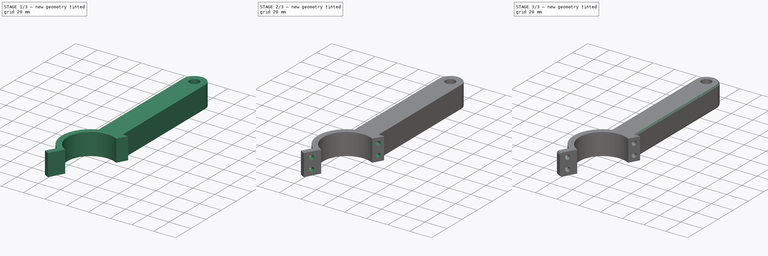
[diagram: build sequence overview — one tinted view per stage of 3, left to right]
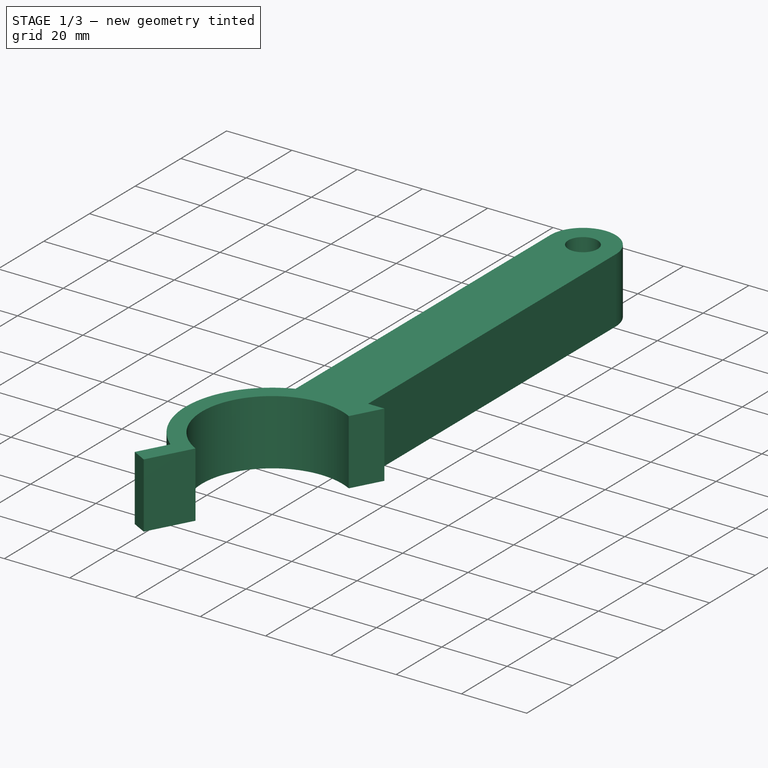
[diagram: stage 1 of 3 — iso view after this stage's code; geometry added in this stage tinted green]
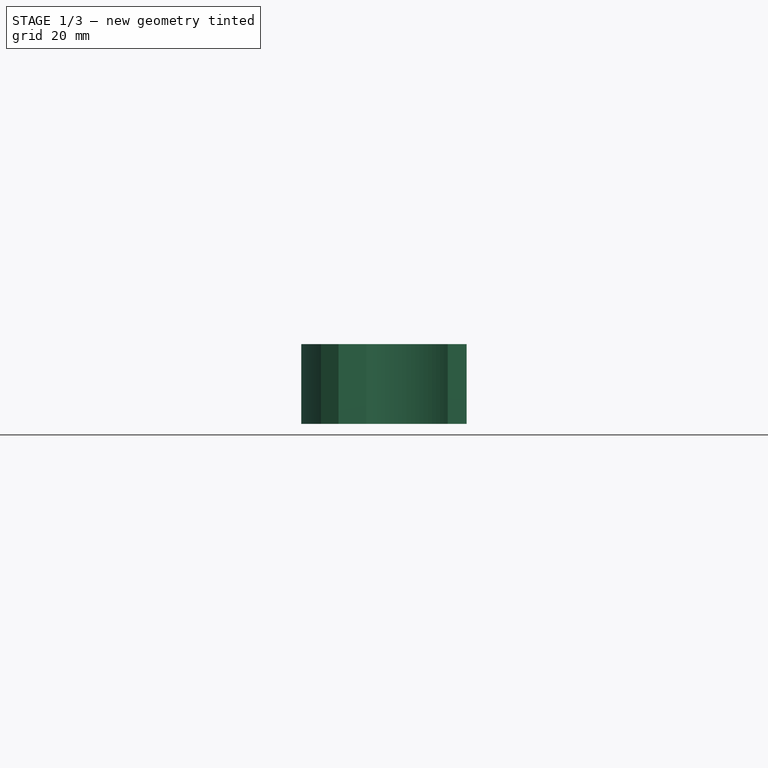
[diagram: stage 1 of 3 — front view after this stage's code; geometry added in this stage tinted green]
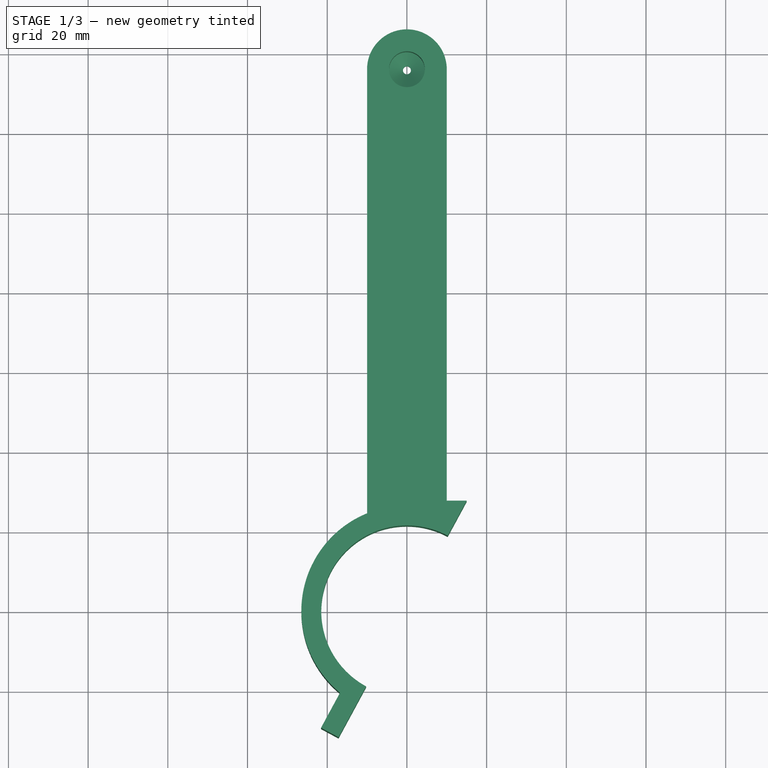
[diagram: stage 1 of 3 — top view after this stage's code; geometry added in this stage tinted green]
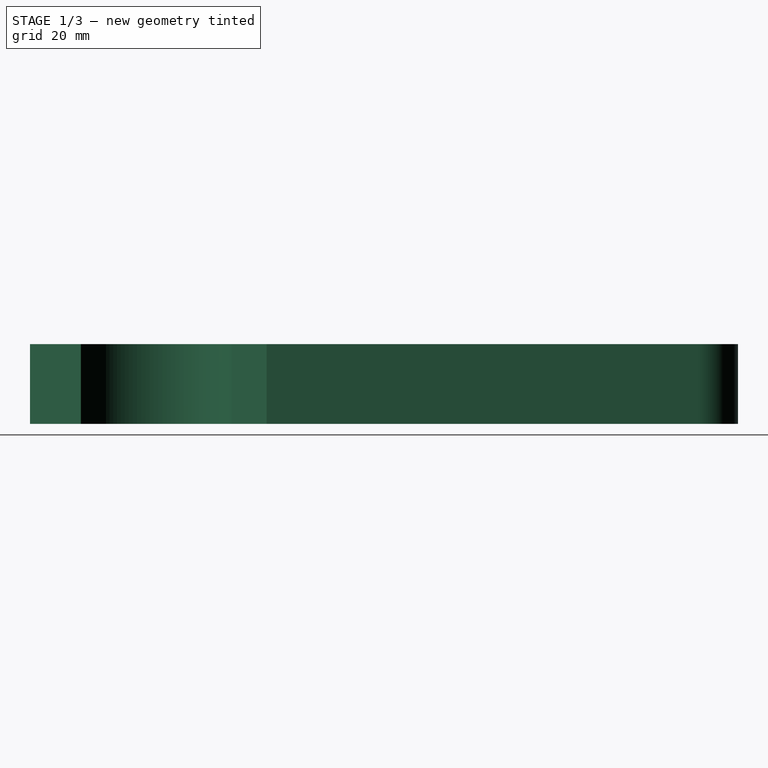
[diagram: stage 1 of 3 — right view after this stage's code; geometry added in this stage tinted green]
FCSTD DOCUMENT  (FreeCAD 0.19R)
Label: arm
License: All rights reserved
LicenseURL: http://en.wikipedia.org/wiki/All_rights_reserved
objects: Sketcher::SketchObject×3, PartDesign::Pocket×2, PartDesign::Pad×1, PartDesign::Hole×1, PartDesign::Fillet×1, PartDesign::Body×1
note: 14 computed .brp shape members not serialized (recipe doc carries the construction recipe); baked Part::Feature solids carry a one-line shape summary decoded from their .brp

FEATURE [Sketcher::SketchObject] Sketch  label="base_arm"
  FullyConstrained = true
  MapMode = 5
  Support = -> [XY_Plane]
  sketch-geometry (12):
    g0: LineSegment StartX=-10 StartY=136 StartZ=0 EndX=-10 EndY=24.5408 EndZ=0
    g1: ArcOfCircle CenterX=0 CenterY=136 CenterZ=0 NormalX=0 NormalY=0 NormalZ=1 AngleXU=0 Radius=10 StartAngle=4e-16 EndAngle=3.14159
    g2: ArcOfCircle CenterX=0 CenterY=0 CenterZ=0 NormalX=0 NormalY=0 NormalZ=1 AngleXU=0 Radius=21.5 StartAngle=1.07448 EndAngle=4.21607
    g3: ArcOfCircle CenterX=0 CenterY=0 CenterZ=0 NormalX=0 NormalY=0 NormalZ=1 AngleXU=0 Radius=26.5 StartAngle=1.95774 EndAngle=4.02625
    g4: LineSegment StartX=10 StartY=136 StartZ=0 EndX=10 EndY=27.6993 EndZ=0
    g5: LineSegment StartX=10 StartY=27.6993 StartZ=0 EndX=15 EndY=27.6993 EndZ=0
    g6: LineSegment StartX=15 StartY=27.6993 StartZ=0 EndX=10.2381 EndY=18.9059 EndZ=0
    g7: LineSegment StartX=-16.7891 StartY=-20.5031 StartZ=0 EndX=-21.551 EndY=-29.2965 EndZ=0
    g8: LineSegment StartX=-21.551 StartY=-29.2965 StartZ=0 EndX=-17.1543 EndY=-31.6774 EndZ=0
    g9: LineSegment StartX=-17.1543 StartY=-31.6774 StartZ=0 EndX=-10.2381 EndY=-18.9059 EndZ=0
    g10: LineSegment StartX=15 StartY=27.6993 StartZ=0 EndX=-17.1543 EndY=-31.6774 EndZ=0
    g11: Circle CenterX=0 CenterY=136 CenterZ=0 NormalX=0 NormalY=0 NormalZ=1 AngleXU=0 Radius=1
  constraints (35):
    c: Vertical(g0)
    c: Coincident(g2,g-1)
    c: Coincident(g1,g0)
    c: Horizontal(g1,g1)
    c: Horizontal(g1,g0)
    c: Coincident(g3,g2)
    c: Coincident(g3,g0)
    c: Coincident(g4,g1)
    c: Vertical(g4)
    c: Coincident(g5,g4)
    c: Horizontal(g5)
    c: Coincident(g6,g5)
    c: Coincident(g6,g2)
    c: Coincident(g7,g3)
    c: Coincident(g8,g7)
    c: Coincident(g9,g8)
    c: Coincident(g2,g9)
    c: Coincident(g10,g5)
    c: Coincident(g10,g8)
    c: PointOnObject(g2,g10)
    c: PointOnObject(g2,g10)
    c: PointOnObject(g2,g10)
    c: Perpendicular(g9,g8)
    c: Parallel(g9,g7)
    c: Diameter(g2) = 43
    c: Diameter(g3) = 53
    c: Coincident(g11,g1)
    c: Diameter(g11) = 2
    c: DistanceX(g1,g1) = 10
    c: DistanceY(g2,g1) = 136
    c: Vertical(g2,g1)
    c: Equal(g8,g5)
    c: Distance(g6) = 10
    c: Distance(g5) = 5
    c: Equal(g7,g6)
FEATURE [PartDesign::Pad] Pad
  Direction = (1,1,1)
  Length = 20
  Length2 = 100
  Profile = -> Sketch
  Type = 0
FEATURE [PartDesign::Hole] Hole
  BaseFeature = -> Pad
  Depth = 14
  DepthType = 0
  Diameter = 9
  DrillForDepth = false
  DrillPoint = 1
  DrillPointAngle = 118
  HoleCutCountersinkAngle = 90
  HoleCutCustomValues = false
  HoleCutDepth = 0
  HoleCutDiameter = 6.1
  HoleCutType = 0
  ModelActualThread = false
  Profile = -> Pad [Face13]
  Tapered = false
  TaperedAngle = 90
  ThreadAngle = 0
  ThreadClass = 0
  ThreadCutOffInner = 0
  ThreadCutOffOuter = 0
  ThreadDirection = 0
  ThreadFit = 0
  ThreadPitch = 0
  ThreadSize = 0
  ThreadType = 0
  Threaded = false
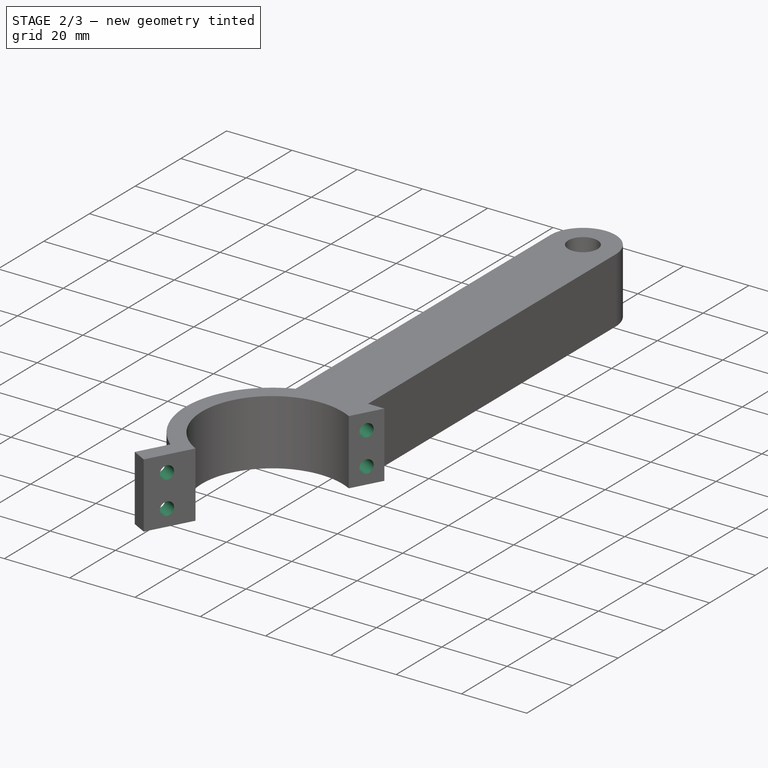
[diagram: stage 2 of 3 — iso view after this stage's code; geometry added in this stage tinted green]
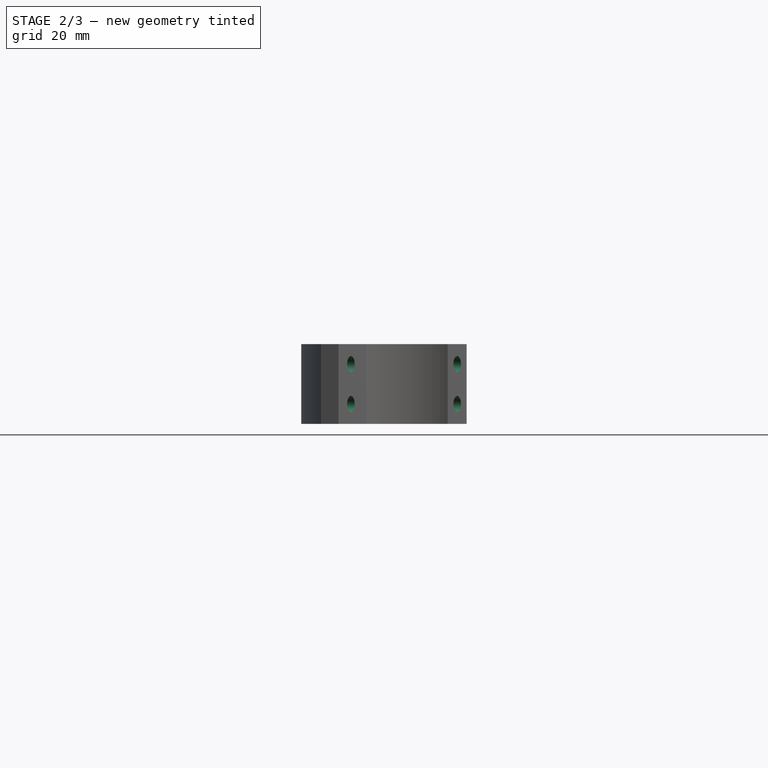
[diagram: stage 2 of 3 — front view after this stage's code; geometry added in this stage tinted green]
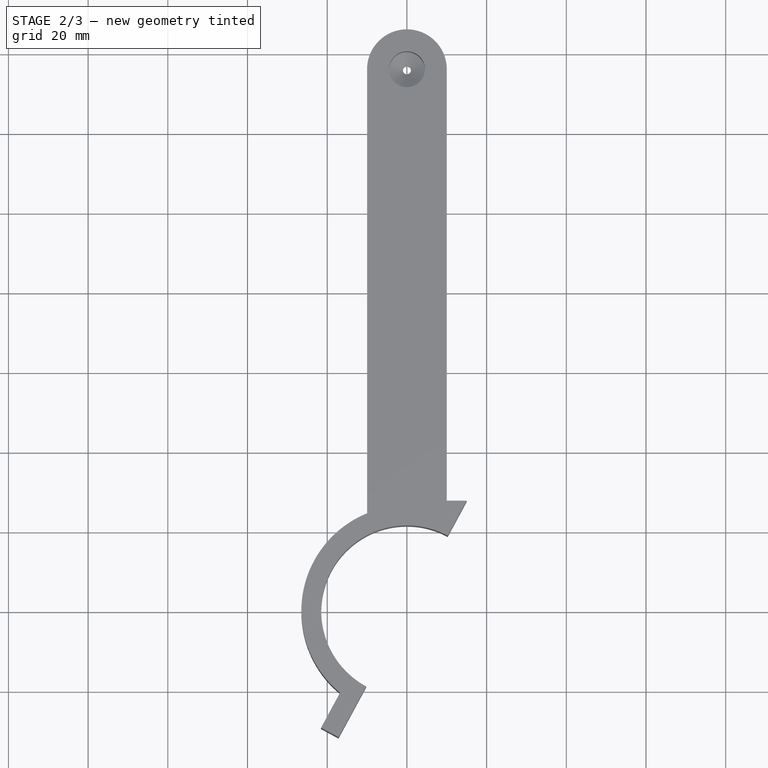
[diagram: stage 2 of 3 — top view after this stage's code; geometry added in this stage tinted green]
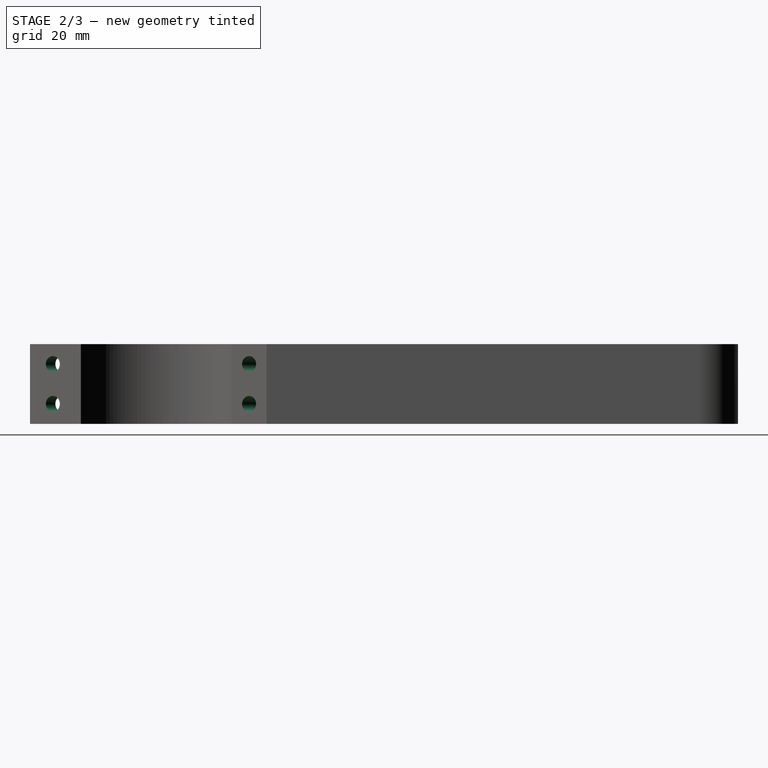
[diagram: stage 2 of 3 — right view after this stage's code; geometry added in this stage tinted green]
FEATURE [Sketcher::SketchObject] Sketch001
  ExternalGeometry = -> [Hole]
  FullyConstrained = true
  MapMode = 5
  Placement = pos=(-1.87e-14,1.02e-14,0) rot=(0.764791,0.455573,0.455573;1.83579rad)
  Support = -> [Hole]
  sketch-geometry (4):
    g0: Circle CenterX=-29.5 CenterY=15 CenterZ=0 NormalX=0 NormalY=0 NormalZ=1 AngleXU=0 Radius=2
    g1: Circle CenterX=-29.5 CenterY=5 CenterZ=0 NormalX=0 NormalY=0 NormalZ=1 AngleXU=0 Radius=2
    g2: Circle CenterX=26.5 CenterY=15 CenterZ=0 NormalX=0 NormalY=0 NormalZ=1 AngleXU=0 Radius=2
    g3: Circle CenterX=26.5 CenterY=5 CenterZ=0 NormalX=0 NormalY=0 NormalZ=1 AngleXU=0 Radius=2
  constraints (12):
    c: Equal(g3,g2)
    c: Equal(g2,g0)
    c: Equal(g0,g1)
    c: Diameter(g0) = 4
    c: Vertical(g3,g2)
    c: Vertical(g1,g0)
    c: Horizontal(g1,g3)
    c: Horizontal(g2,g0)
    c: DistanceY(g0,g-4) = 5
    c: DistanceX(g-3,g3) = 5
    c: DistanceY(g-3,g3) = 5
    c: DistanceX(g0,g-5) = 8
FEATURE [PartDesign::Pocket] Pocket
  BaseFeature = -> Hole
  Length = 27
  Length2 = 100
  Profile = -> Sketch001
  Type = 0
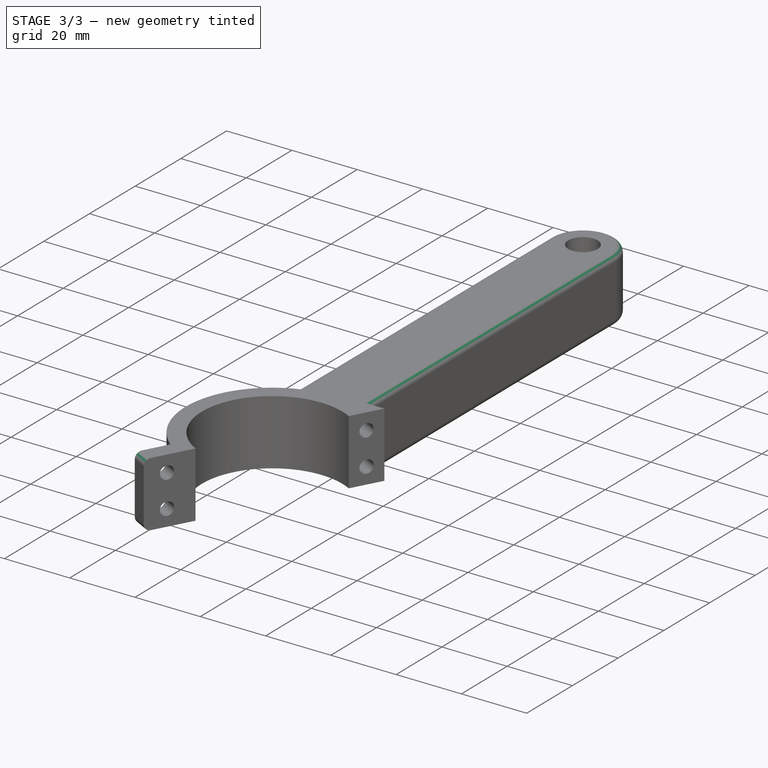
[diagram: stage 3 of 3 — iso view after this stage's code; geometry added in this stage tinted green]
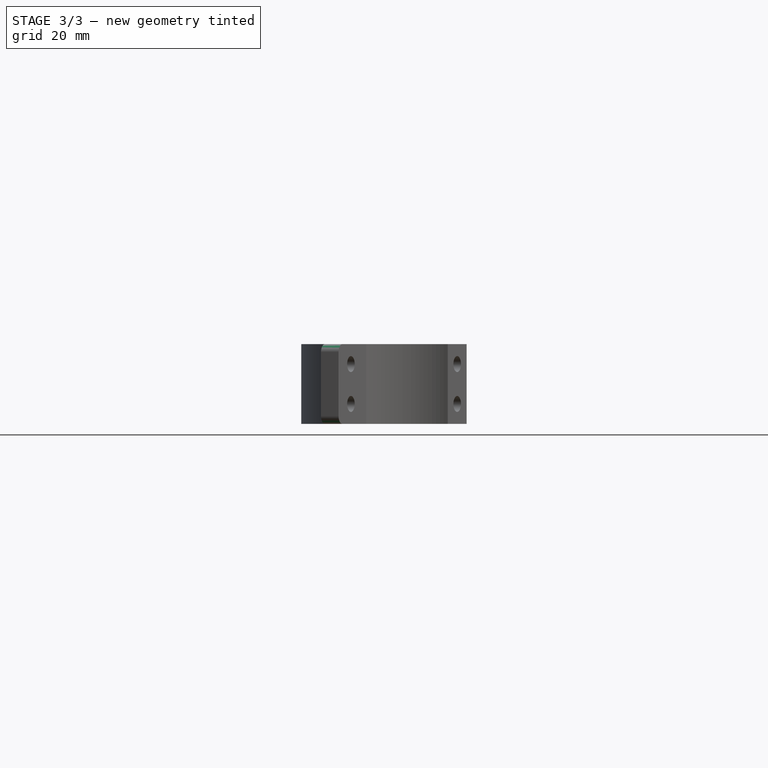
[diagram: stage 3 of 3 — front view after this stage's code; geometry added in this stage tinted green]
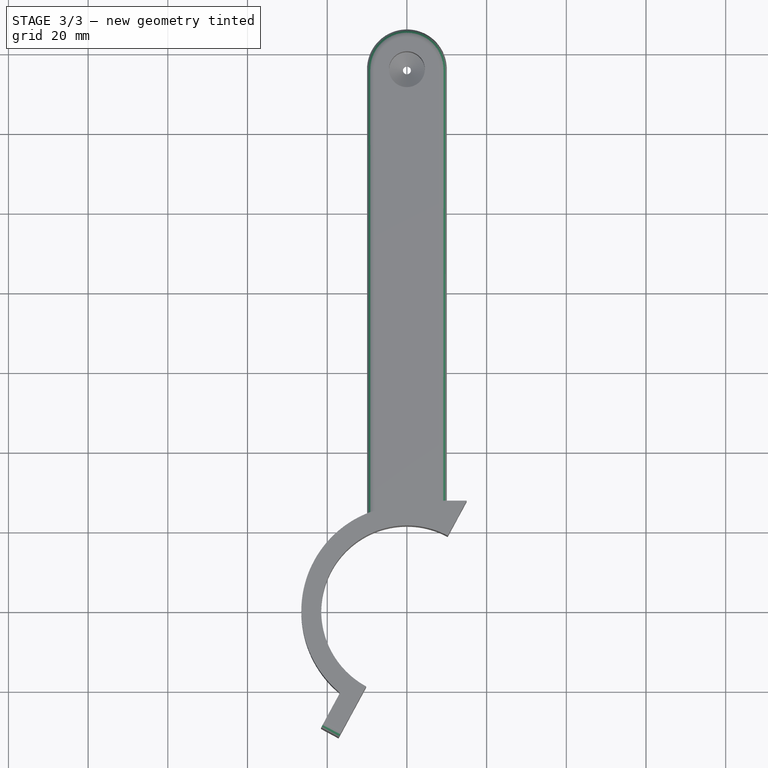
[diagram: stage 3 of 3 — top view after this stage's code; geometry added in this stage tinted green]
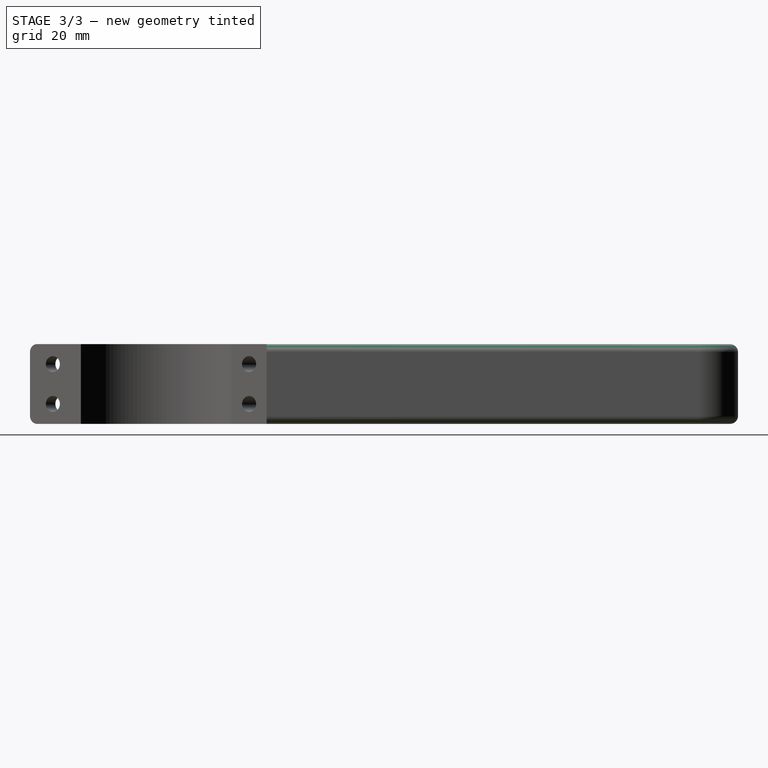
[diagram: stage 3 of 3 — right view after this stage's code; geometry added in this stage tinted green]
FEATURE [PartDesign::Fillet] Fillet
  Base = -> Pocket [Edge4,Edge3,Edge14,Edge25]
  BaseFeature = -> Pocket
  Radius = 2
  SupportTransform = false
FEATURE [Sketcher::SketchObject] Sketch002
  ExternalGeometry = -> [Fillet]
  FullyConstrained = true
  MapMode = 5
  Placement = pos=(-4.39671,2.38095,0) rot=(-0.388182,0.651658,0.651658;3.88215rad)
  Support = -> [Fillet]
  sketch-geometry (2):
    g0: Circle CenterX=29.5 CenterY=15 CenterZ=0 NormalX=0 NormalY=0 NormalZ=1 AngleXU=0 Radius=4
    g1: Circle CenterX=29.5 CenterY=5 CenterZ=0 NormalX=0 NormalY=0 NormalZ=1 AngleXU=0 Radius=4
  constraints (4):
    c: Coincident(g0,g-3)
    c: Coincident(g1,g-4)
    c: Equal(g1,g0)
    c: Diameter(g0) = 8
FEATURE [PartDesign::Pocket] Pocket001
  BaseFeature = -> Fillet
  Length = 5
  Length2 = 100
  Profile = -> Sketch002
  Reversed = true
  Type = 0
FEATURE [PartDesign::Body] Body
  Group = -> [Sketch,Pad,Hole,Sketch001,Pocket,Fillet,Sketch002,Pocket001]
  Origin = -> Origin
  Tip = -> Pocket001
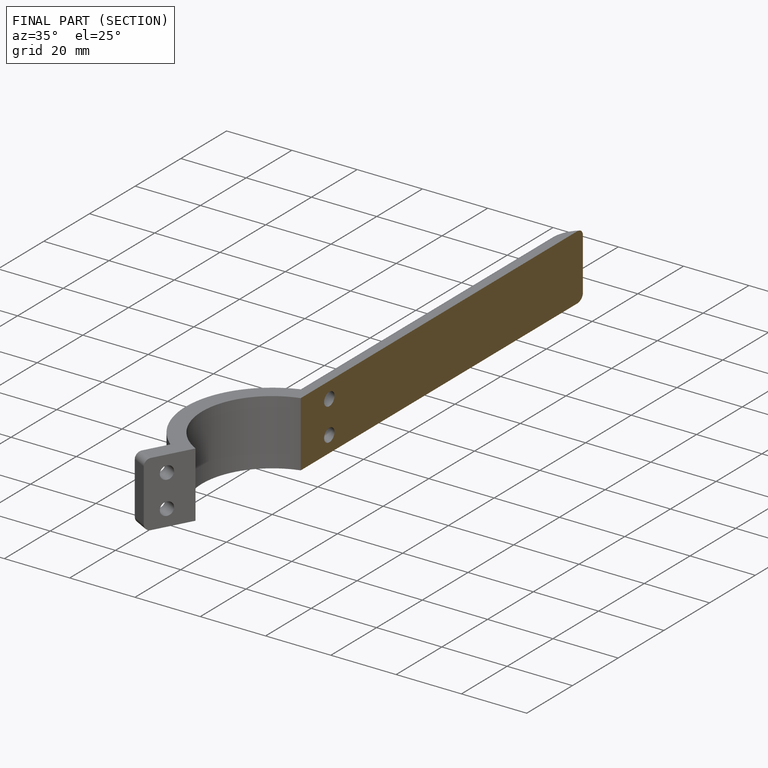
[diagram: finished part — half-section view (interior)]
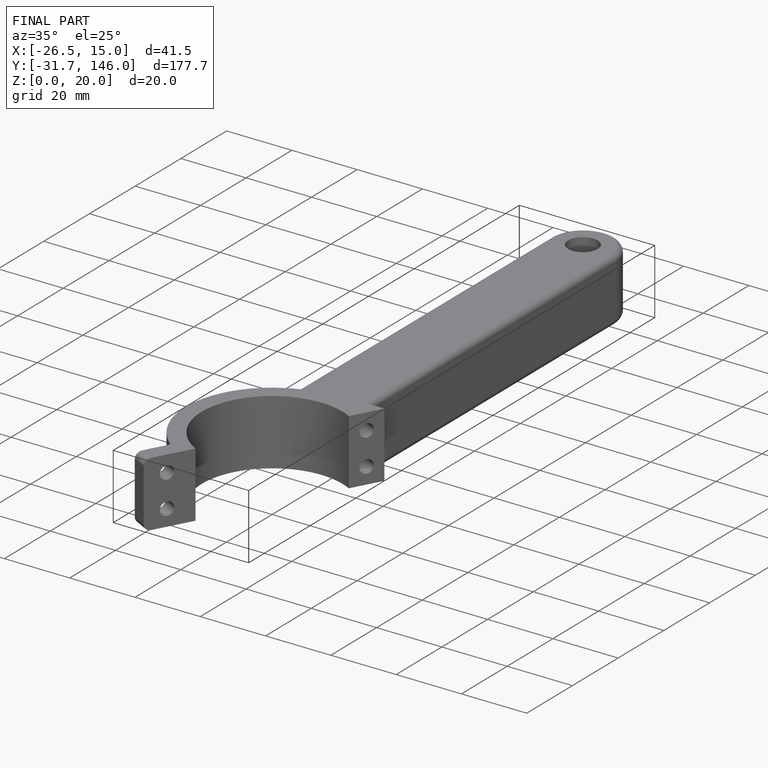
[diagram: finished part — iso view with bounding-box wireframe]
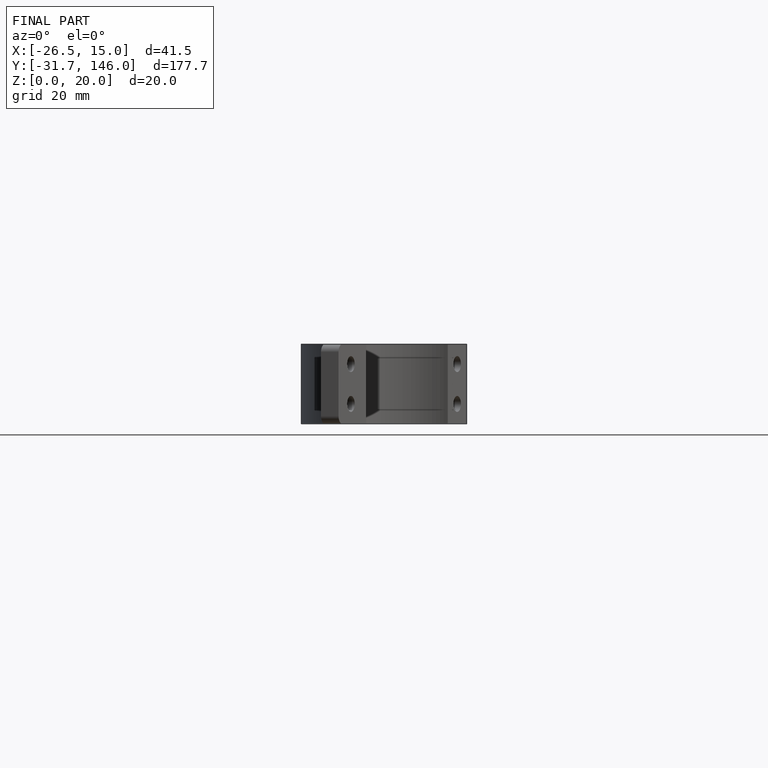
[diagram: finished part — front view with bounding-box wireframe]
